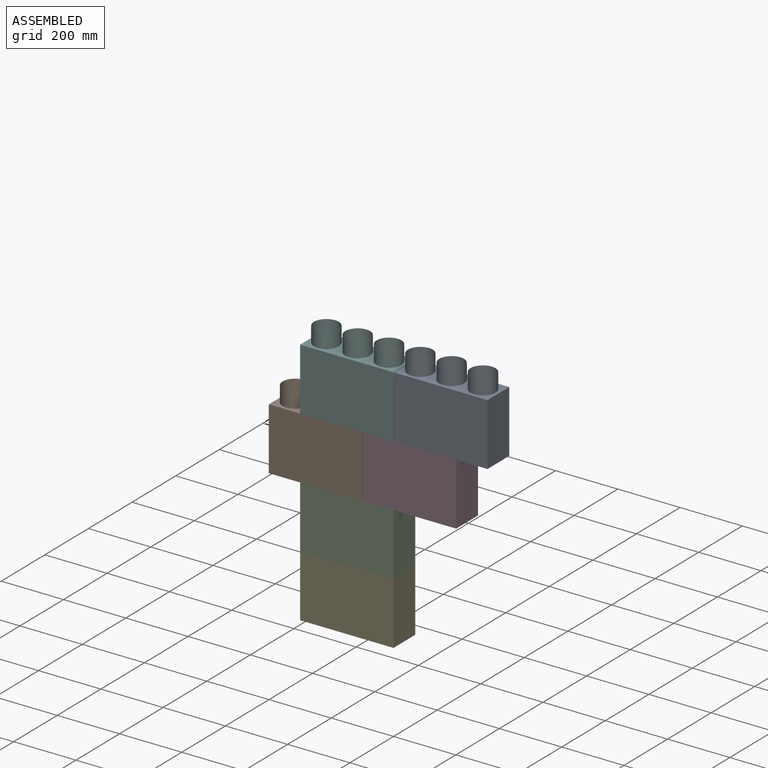
[diagram: assembled view]
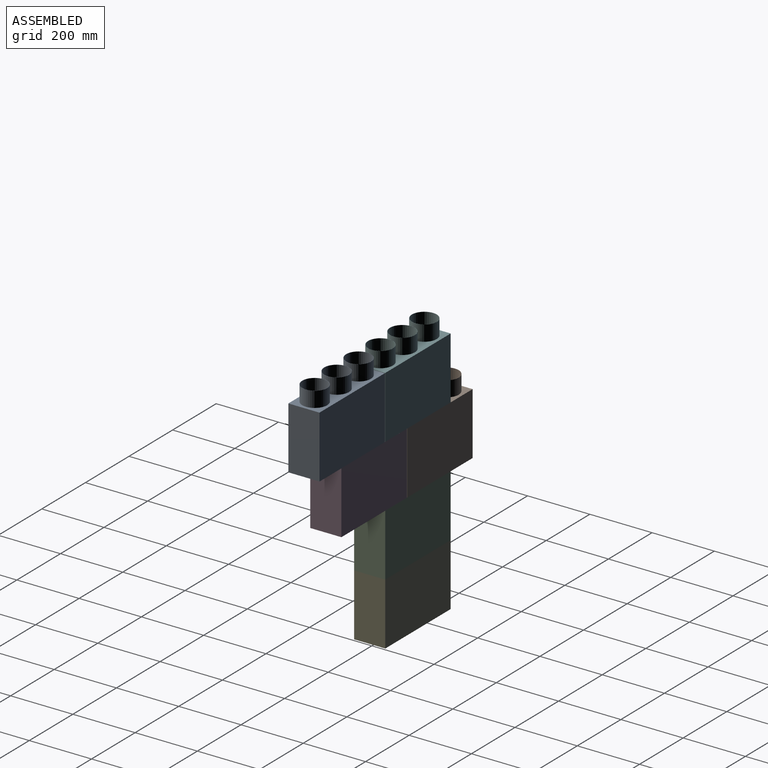
[diagram: assembled view, second angle]
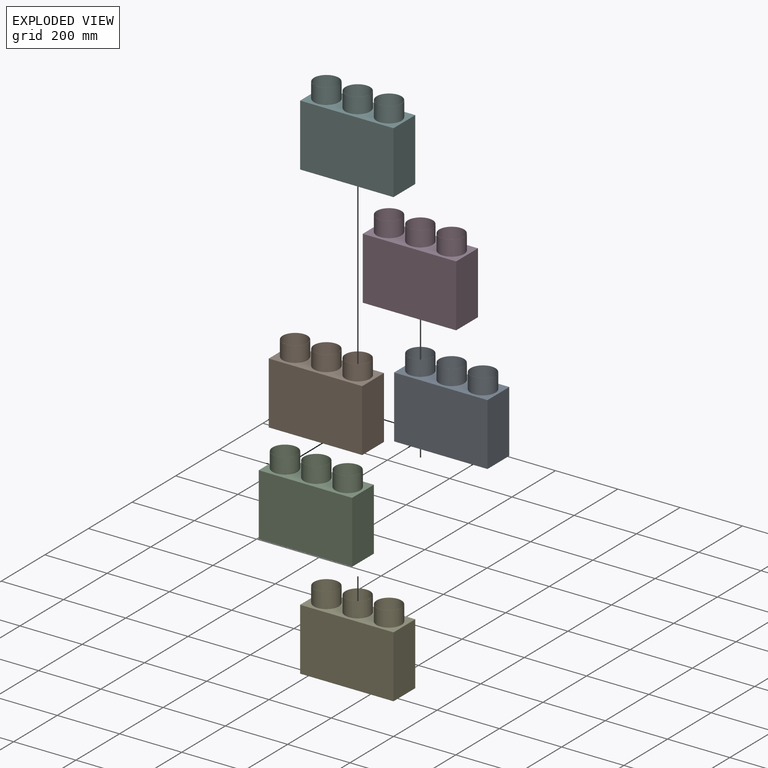
[diagram: exploded view]
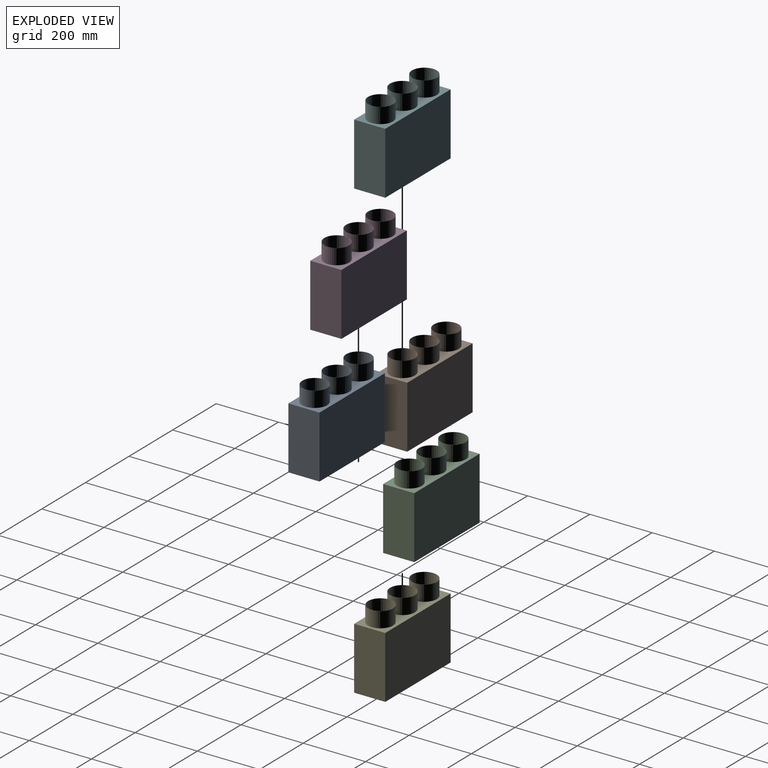
[diagram: exploded view, second angle]
ASSEMBLY  parts=6 mates=5
PART A: 26 faces, bbox 300x100x250 mm
  f0: plane 299.2x198mm, normal (0,1,0), area 59241.6mm2, adj f1,f3,f9,f25
  f1: plane 198x99.2mm, normal (1,0,0), area 19641.6mm2, adj f0,f2,f9,f25
  f2: plane 299.2x198mm, normal (0,-1,0), area 59241.6mm2, adj f1,f3,f9,f25
  f3: plane 198x99.2mm, normal (-1,0,0), area 19641.6mm2, adj f0,f2,f9,f25
  f4: plane 200x100mm, normal (-1,0,0), area 20000mm2, adj f5,f7,f8,f9
  f5: plane 300x200mm, normal (0,-1,0), area 60000mm2, adj f4,f6,f8,f9
  f6: plane 200x100mm, normal (1,0,0), area 20000mm2, adj f5,f7,f8,f9
  f7: plane 300x200mm, normal (0,1,0), area 60000mm2, adj f4,f6,f8,f9
  f8: plane 300x100mm, normal (0,0,1), area 14920.4mm2, adj f4,f5,f6,f7,f12,f17,f22
  f9: plane 300x100mm, normal (0,0,-1), area 319.4mm2, adj f0,f1,f2,f3,f4,f5,f6,f7
  f10: cylinder r=40mm len=198mm, axis (0,0,-1), area 49762.8mm2, adj f14,f25
  f11: cylinder r=39.6mm len=250mm, axis (0,0,-1), area 62203.5mm2, adj f13,f14
  f12: cylinder r=40mm len=80mm, axis (0,0,-1), area 12566.4mm2, adj f8,f13
  f13: plane 80x80mm, normal (0,0,1), area 100mm2, adj f11,f12
  f14: plane 80x80mm, normal (0,0,-1), area 100mm2, adj f10,f11
  f15: cylinder r=40mm len=198mm, axis (0,0,-1), area 49762.8mm2, adj f19,f25
  f16: cylinder r=39.6mm len=250mm, axis (0,0,-1), area 62203.5mm2, adj f18,f19
  f17: cylinder r=40mm len=80mm, axis (0,0,-1), area 12566.4mm2, adj f8,f18
  f18: plane 80x80mm, normal (0,0,1), area 100mm2, adj f16,f17
  f19: plane 80x80mm, normal (0,0,-1), area 100mm2, adj f15,f16
  f20: cylinder r=40mm len=198mm, axis (0,0,-1), area 49762.8mm2, adj f24,f25
  f21: cylinder r=39.6mm len=250mm, axis (0,0,-1), area 62203.5mm2, adj f23,f24
  f22: cylinder r=40mm len=80mm, axis (0,0,-1), area 12566.4mm2, adj f8,f23
  f23: plane 80x80mm, normal (0,0,1), area 100mm2, adj f21,f22
  f24: plane 80x80mm, normal (0,0,-1), area 100mm2, adj f20,f21
  f25: plane 299.2x99.2mm, normal (0,0,-1), area 14601mm2, adj f0,f1,f2,f3,f10,f15,f20
PART B: same geometry as A
PART C: same geometry as A
PART D: same geometry as A
PART E: same geometry as A
PART F: same geometry as A
PLACE A t=(446.8,0,600)mm
PLACE B t=(44.4,0,400)mm
PLACE C t=(145,0,200)mm
PLACE D t=(346.2,0,400)mm
PLACE E t=(145,0,0)mm
PLACE F t=(145,0,600)mm
MATE fastened D.f15 <-> C.f20  axis (0,0,-1) through (245.6,0,400)mm
MATE fastened C.f15 <-> E.f15  axis (0,0,-1) through (44.4,0,200)mm
MATE fastened F.f20 <-> D.f15  axis (0,0,-1) through (245.6,0,600)mm
MATE fastened B.f20 <-> C.f10  axis (0,0,-1) through (145,0,400)mm
MATE fastened A.f15 <-> D.f10  axis (0,0,-1) through (346.2,0,600)mm
